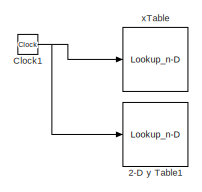
[diagram: root canvas - part 1/5, top center region]
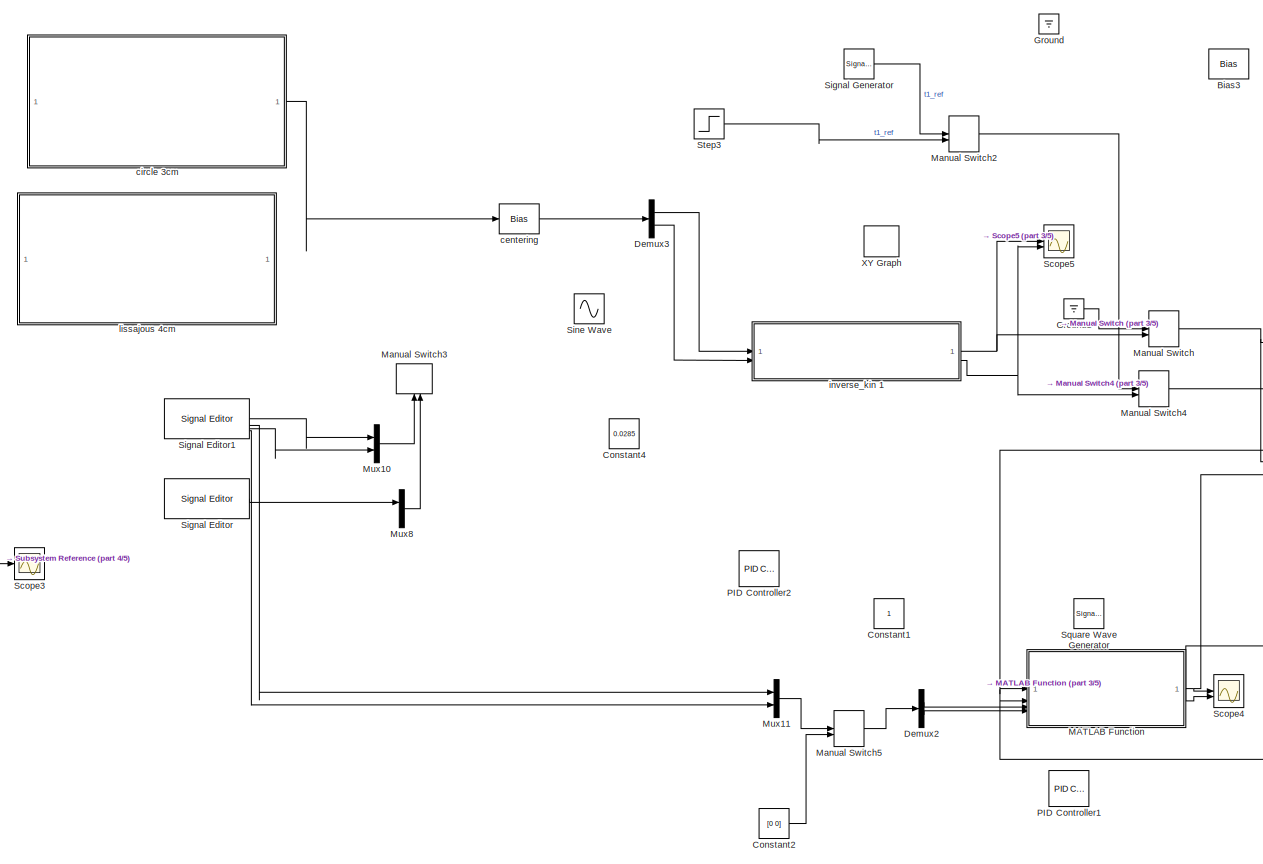
[diagram: root canvas - part 2/5, central region]
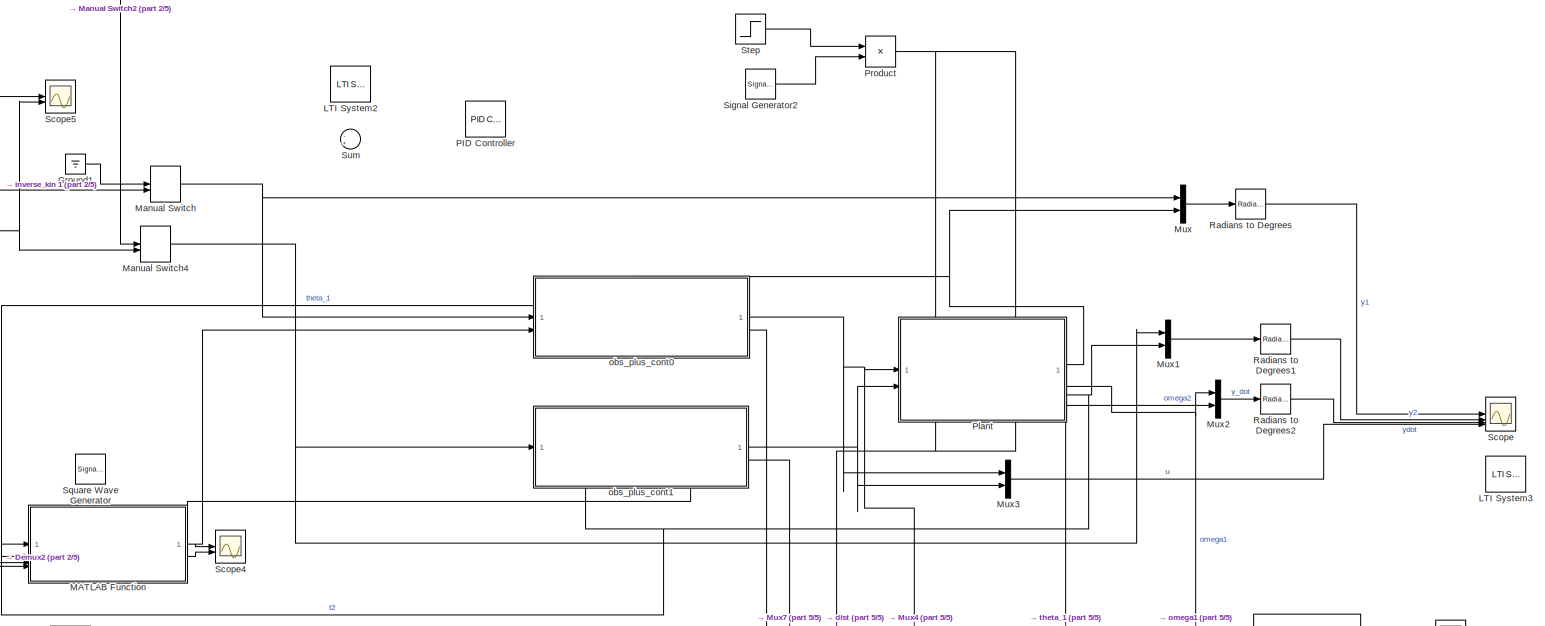
[diagram: root canvas - part 3/5, middle right region]
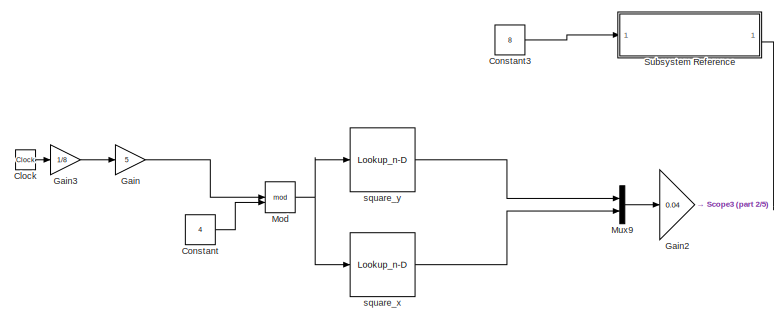
[diagram: root canvas - part 4/5, middle left region]
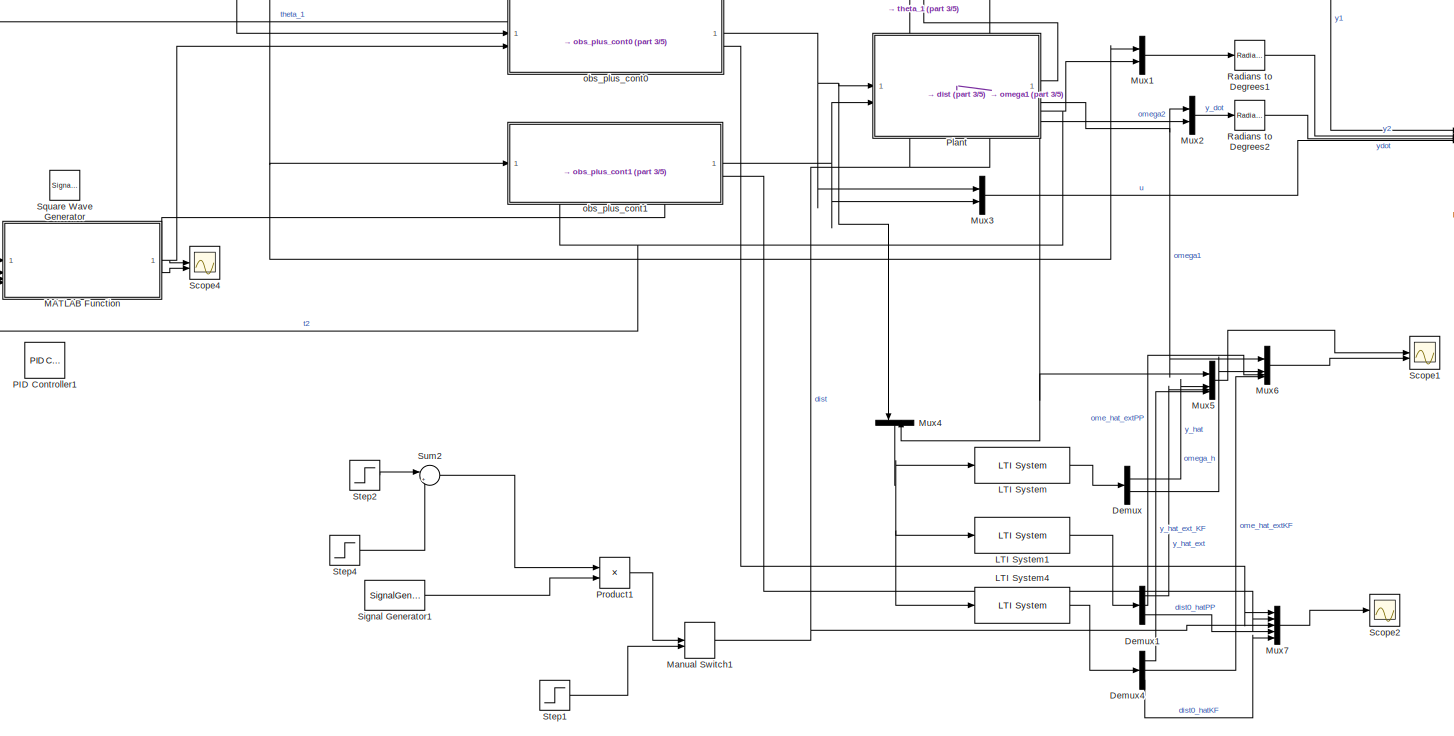
[diagram: root canvas - part 5/5, bottom right region]
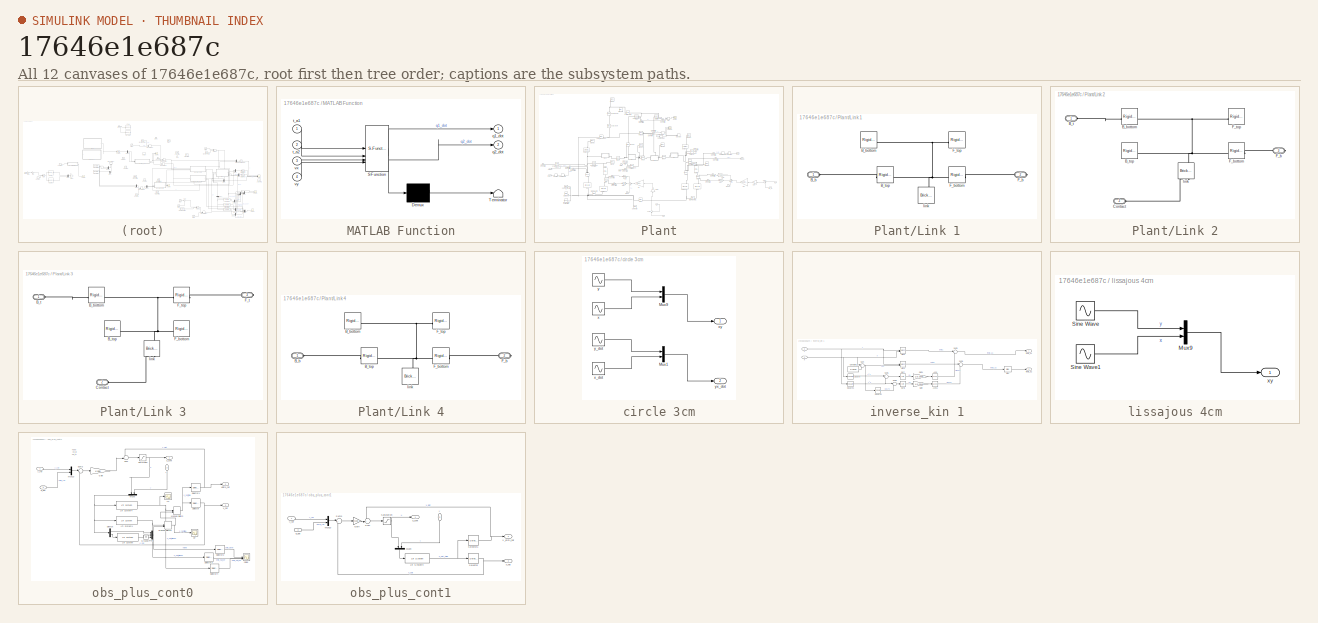
[diagram: thumbnail index - all 12 canvases of the model, root first then tree order]
MODEL slx_17646e1e687c
KIND model
CONFIG AbsTol = auto
CONFIG EnableMultiTasking = on
CONFIG FixedStep = auto
CONFIG MaxStep = auto
CONFIG MinStep = auto
CONFIG RelTol = 1e-3
CONFIG SampleTimeConstraint = Unconstrained
CONFIG SolverName = VariableStepAuto
CONFIG StartTime = 0.0
CONFIG StopTime = 10
BLOCK [Lookup_n-D] 2-D y Table1
  BreakpointsForDimension1 = 0:2:6
  BreakpointsForDimension2 = [1:3]
  Commented = on
  InputPortMap = u0
  InternalRulePriority = Speed
  NumberOfTableDimensions = 1
  RndMeth = Simplest
  Table = [0.127 0 -0.051 -0.051]
BLOCK [Bias] Bias3
  Bias = 0.127
  SaturateOnIntegerOverflow = off
BLOCK [Clock] Clock
BLOCK [Clock] Clock1
  Commented = on
BLOCK [Constant] Constant
  Value = 4
BLOCK [Constant] Constant1
BLOCK [Constant] Constant2
  Value = [0 0]
BLOCK [Constant] Constant3
  Value = 8
BLOCK [Constant] Constant4
  Value = 0.0285
BLOCK [Demux] Demux
  Outputs = 2
BLOCK [Demux] Demux1
  Outputs = 3
BLOCK [Demux] Demux2
  Outputs = 2
BLOCK [Demux] Demux3
  Outputs = 2
BLOCK [Demux] Demux4
  Outputs = 3
BLOCK [Gain] Gain
  Gain = 5
BLOCK [Gain] Gain2
  Gain = 0.04
BLOCK [Gain] Gain3
  Gain = 1/8
  NameLocation = left
BLOCK [Ground] Ground
BLOCK [Ground] Ground1
BLOCK [Reference] LTI System  REF=cstblocks/LTI System
  SourceBlock = cstblocks/LTI System
  SourceType = LTI Block
BLOCK [Reference] LTI System1  REF=cstblocks/LTI System
  SourceBlock = cstblocks/LTI System
  SourceType = LTI Block
BLOCK [Reference] LTI System2  REF=cstblocks/LTI System
  Commented = on
  SourceBlock = cstblocks/LTI System
  SourceType = LTI Block
BLOCK [Reference] LTI System3  REF=cstblocks/LTI System
  Commented = on
  SourceBlock = cstblocks/LTI System
  SourceType = LTI Block
BLOCK [Reference] LTI System4  REF=cstblocks/LTI System
  SourceBlock = cstblocks/LTI System
  SourceType = LTI Block
BLOCK [SubSystem] MATLAB Function
  ErrorFcn = Stateflow.Translate.translate
  PermitHierarchicalResolution = ExplicitOnly
  SFBlockType = MATLAB Function
  TreatAsAtomicUnit = on
BLOCK [Demux] MATLAB Function/ Demux 
  Outputs = 1
BLOCK [S-Function] MATLAB Function/ SFunction 
  EnableBusSupport = on
  FunctionName = sf_sfun
  PortCounts = [4 3]
  SFcnIsStateOwnerBlock = off
  SFunctionDeploymentMode = off
  Tag = Stateflow S-Function 2
BLOCK [Terminator] MATLAB Function/ Terminator 
BLOCK [Outport] MATLAB Function/q1_dot
BLOCK [Outport] MATLAB Function/q2_dot
  Port = 2
BLOCK [Inport] MATLAB Function/t_a1
BLOCK [Inport] MATLAB Function/t_a2
  Port = 2
BLOCK [Inport] MATLAB Function/vx
  Port = 3
BLOCK [Inport] MATLAB Function/vy
  Port = 4
BLOCK [ManualSwitch] Manual Switch
BLOCK [ManualSwitch] Manual Switch1
  CurrentSetting = 0
BLOCK [ManualSwitch] Manual Switch2
  CurrentSetting = 0
BLOCK [ManualSwitch] Manual Switch3
  Commented = on
  NameLocation = right
BLOCK [ManualSwitch] Manual Switch4
BLOCK [ManualSwitch] Manual Switch5
  CurrentSetting = 0
BLOCK [Math] Mod
  Operator = mod
BLOCK [Mux] Mux
  DisplayOption = bar
  Inputs = 2
BLOCK [Mux] Mux1
  DisplayOption = bar
  Inputs = 2
BLOCK [Mux] Mux10
  Commented = on
  DisplayOption = bar
  Inputs = 2
BLOCK [Mux] Mux11
  DisplayOption = bar
  Inputs = 2
BLOCK [Mux] Mux2
  DisplayOption = bar
  Inputs = 2
BLOCK [Mux] Mux3
  DisplayOption = bar
  Inputs = 2
BLOCK [Mux] Mux4
  DisplayOption = bar
  Inputs = 2
  NameLocation = left
BLOCK [Mux] Mux5
  DisplayOption = bar
BLOCK [Mux] Mux6
  DisplayOption = bar
BLOCK [Mux] Mux7
  DisplayOption = bar
  Inputs = 5
BLOCK [Mux] Mux8
  Commented = on
  DisplayOption = bar
  Inputs = 2
BLOCK [Mux] Mux9
  DisplayOption = bar
  Inputs = 2
BLOCK [Reference] PID Controller  REF=slpidlib/PID Controller
  LibrarySourceBlock = simulink/Continuous/PID Controller
  SourceBlock = slpidlib/PID Controller
  SourceType = PID 1dof
BLOCK [Reference] PID Controller1  REF=slpidlib/PID Controller
  LibrarySourceBlock = simulink/Continuous/PID Controller
  SourceBlock = slpidlib/PID Controller
  SourceType = PID 1dof
BLOCK [Reference] PID Controller2  REF=slpidlib/PID Controller
  LibrarySourceBlock = simulink/Continuous/PID Controller
  SourceBlock = slpidlib/PID Controller
  SourceType = PID 1dof
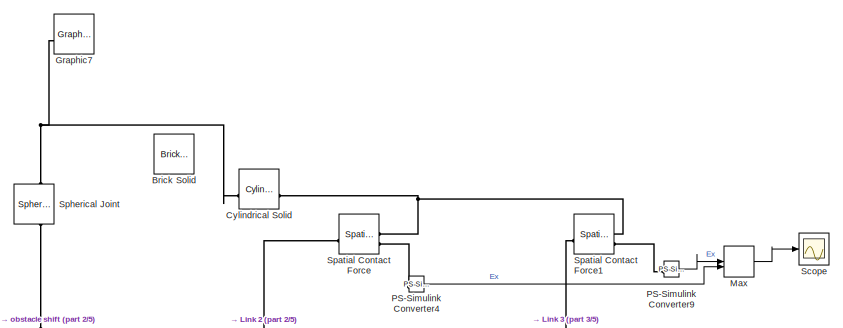
[diagram: Plant - part 1/5, top center region]
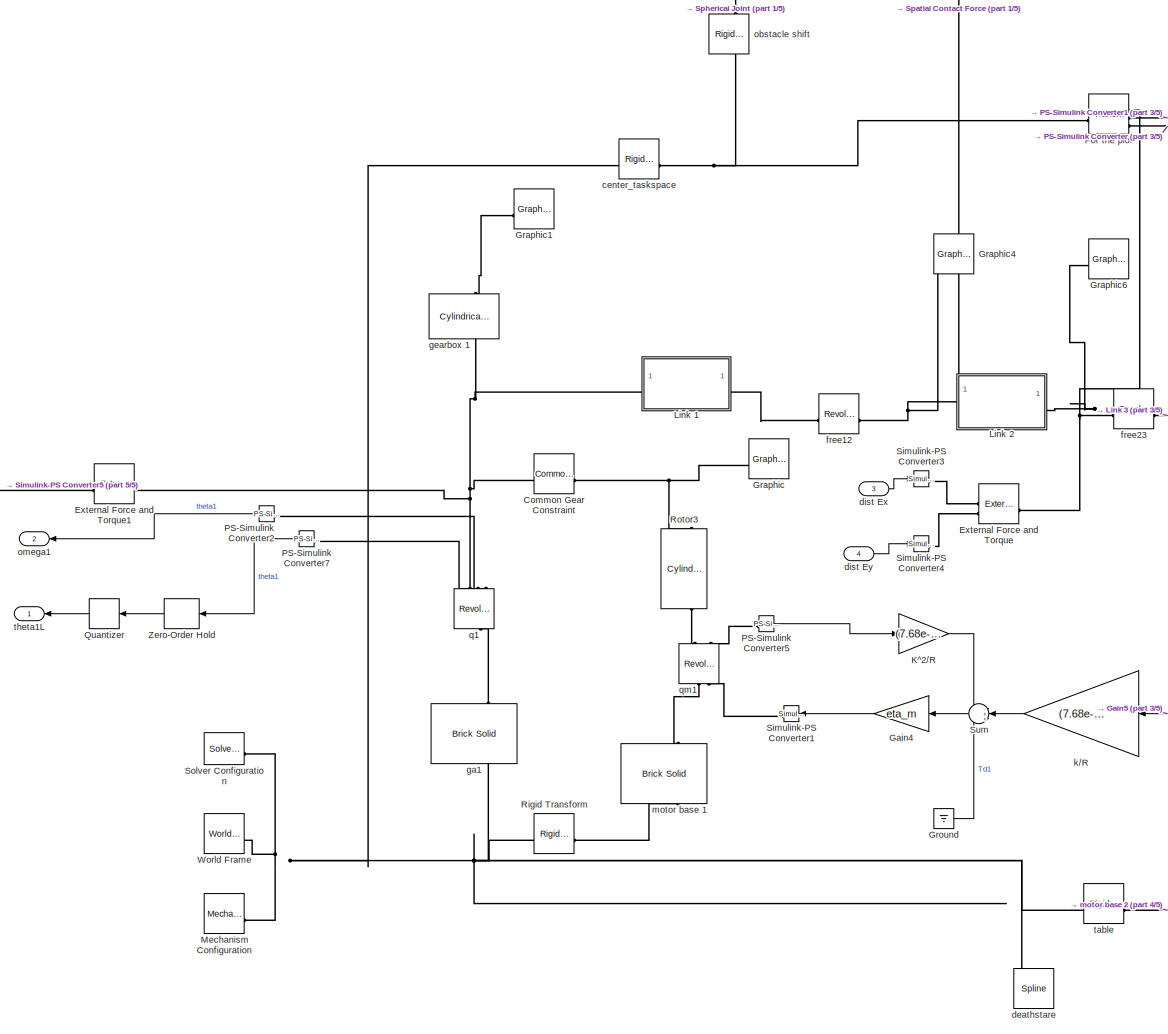
[diagram: Plant - part 2/5, middle left region]
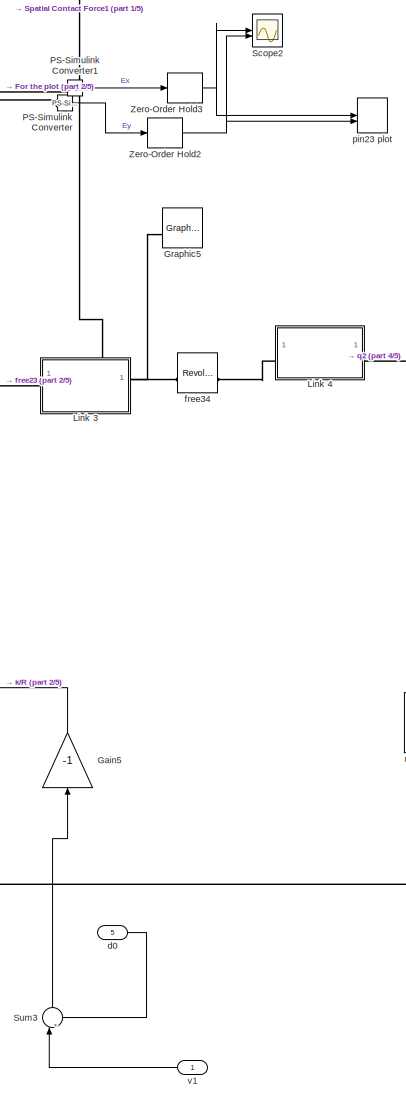
[diagram: Plant - part 3/5, center side, full height]
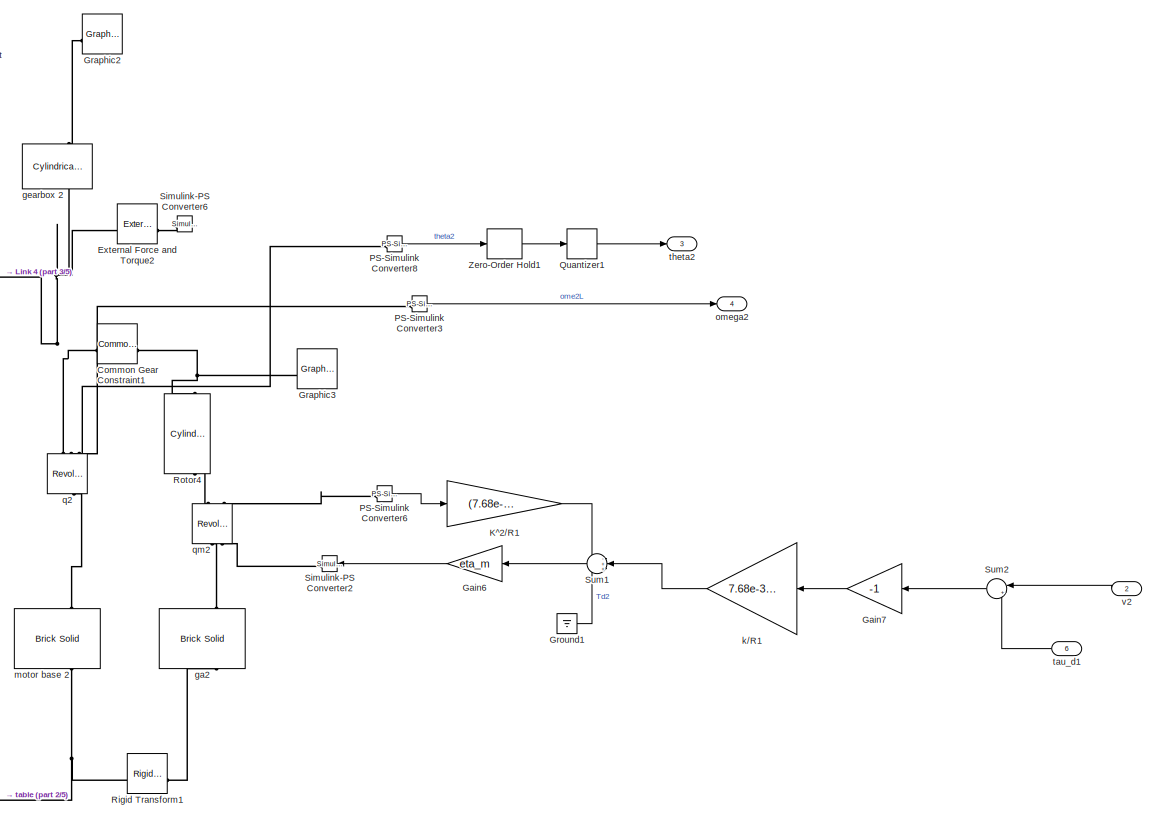
[diagram: Plant - part 4/5, middle right region]
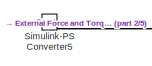
[diagram: Plant - part 5/5, middle left region]
BLOCK [SubSystem] Plant
  PortSchema = {"entries":[{"content":{"sides":[{"content":{"connectorIds":["In1","In2"]},"type":"ConnectorPlacement.EquallySpacedRectSide","uuid":"c17d0cb6-cba9-49ee-8cb4-85d71eb3b67e"},{"content":{"connectorIds":["Out1","Out2","Out3","Out4"],"side":"RIGHT"},"type":"ConnectorPlacement.EquallySpacedRectSide","uuid":"71120539-037f-400a-bd33-7feb054dfcef"},{"content":{"connectorIds":["In3","In4"],"side":"TOP"},"ty...<+433ch>
BLOCK [Reference] Plant/Brick Solid  REF=sm_lib/Body Elements/Brick Solid
  Commented = on
  NameLocation = top
  SourceBlock = sm_lib/Body Elements/Brick Solid
  SourceType = Brick Solid
BLOCK [Reference] Plant/Common Gear Constraint  REF=sm_lib/Gears and
Couplings/Gears/Common Gear
Constraint
  NameLocation = top
  SourceBlock = sm_lib/Gears and\nCouplings/Gears/Common Gear\nConstraint
  SourceType = Common Gear\nConstraint
BLOCK [Reference] Plant/Common Gear Constraint1  REF=sm_lib/Gears and
Couplings/Gears/Common Gear
Constraint
  NameLocation = top
  SourceBlock = sm_lib/Gears and\nCouplings/Gears/Common Gear\nConstraint
  SourceType = Common Gear\nConstraint
BLOCK [Reference] Plant/Cylindrical Solid  REF=sm_lib/Body Elements/Cylindrical Solid
  SourceBlock = sm_lib/Body Elements/Cylindrical Solid
  SourceType = Cylindrical Solid
BLOCK [Reference] Plant/External Force and Torque  REF=sm_lib/Forces and
Torques/External Force
and Torque
  SourceBlock = sm_lib/Forces and\nTorques/External Force\nand Torque
  SourceType = External Force\nand Torque
BLOCK [Reference] Plant/External Force and Torque1  REF=sm_lib/Forces and
Torques/External Force
and Torque
  SourceBlock = sm_lib/Forces and\nTorques/External Force\nand Torque
  SourceType = External Force\nand Torque
BLOCK [Reference] Plant/External Force and Torque2  REF=sm_lib/Forces and
Torques/External Force
and Torque
  NameLocation = top
  SourceBlock = sm_lib/Forces and\nTorques/External Force\nand Torque
  SourceType = External Force\nand Torque
BLOCK [Reference] Plant/For the plot  REF=sm_lib/Frames and
Transforms/Transform
Sensor
  SourceBlock = sm_lib/Frames and\nTransforms/Transform\nSensor
  SourceType = Transform\nSensor
BLOCK [Gain] Plant/Gain4
  Gain = eta_m
  NameLocation = top
BLOCK [Gain] Plant/Gain5
  Gain = -1
  NameLocation = right
BLOCK [Gain] Plant/Gain6
  Gain = eta_m
  NameLocation = top
BLOCK [Gain] Plant/Gain7
  Gain = -1
  NameLocation = top
BLOCK [Reference] Plant/Graphic  REF=sm_lib/Body Elements/Graphic
  NameLocation = top
  SourceBlock = sm_lib/Body Elements/Graphic
  SourceType = Graphic
BLOCK [Reference] Plant/Graphic1  REF=sm_lib/Body Elements/Graphic
  NameLocation = top
  SourceBlock = sm_lib/Body Elements/Graphic
  SourceType = Graphic
BLOCK [Reference] Plant/Graphic2  REF=sm_lib/Body Elements/Graphic
  NameLocation = top
  SourceBlock = sm_lib/Body Elements/Graphic
  SourceType = Graphic
BLOCK [Reference] Plant/Graphic3  REF=sm_lib/Body Elements/Graphic
  NameLocation = top
  SourceBlock = sm_lib/Body Elements/Graphic
  SourceType = Graphic
BLOCK [Reference] Plant/Graphic4  REF=sm_lib/Body Elements/Graphic
  NameLocation = top
  SourceBlock = sm_lib/Body Elements/Graphic
  SourceType = Graphic
BLOCK [Reference] Plant/Graphic5  REF=sm_lib/Body Elements/Graphic
  NameLocation = top
  SourceBlock = sm_lib/Body Elements/Graphic
  SourceType = Graphic
BLOCK [Reference] Plant/Graphic6  REF=sm_lib/Body Elements/Graphic
  NameLocation = top
  SourceBlock = sm_lib/Body Elements/Graphic
  SourceType = Graphic
BLOCK [Reference] Plant/Graphic7  REF=sm_lib/Body Elements/Graphic
  NameLocation = top
  SourceBlock = sm_lib/Body Elements/Graphic
  SourceType = Graphic
BLOCK [Ground] Plant/Ground
BLOCK [Ground] Plant/Ground1
BLOCK [Gain] Plant/K^2//R
  Gain = (7.68e-3)^2/2.6
BLOCK [Gain] Plant/K^2//R1
  Gain = (7.68e-3)^2/2.6
BLOCK [SubSystem] Plant/Link 1
BLOCK [PMIOPort] Plant/Link 1/B_b
  Side = Left
BLOCK [Reference] Plant/Link 1/B_bottom  REF=sm_lib/Frames and
Transforms/Rigid
Transform
  Commented = on
  SourceBlock = sm_lib/Frames and\nTransforms/Rigid\nTransform
  SourceType = Rigid\nTransform
BLOCK [Reference] Plant/Link 1/B_top  REF=sm_lib/Frames and
Transforms/Rigid
Transform
  SourceBlock = sm_lib/Frames and\nTransforms/Rigid\nTransform
  SourceType = Rigid\nTransform
BLOCK [PMIOPort] Plant/Link 1/F_b
  Port = 2
  Side = Right
BLOCK [Reference] Plant/Link 1/F_bottom   REF=sm_lib/Frames and
Transforms/Rigid
Transform
  SourceBlock = sm_lib/Frames and\nTransforms/Rigid\nTransform
  SourceType = Rigid\nTransform
BLOCK [Reference] Plant/Link 1/F_top  REF=sm_lib/Frames and
Transforms/Rigid
Transform
  Commented = on
  SourceBlock = sm_lib/Frames and\nTransforms/Rigid\nTransform
  SourceType = Rigid\nTransform
BLOCK [Reference] Plant/Link 1/link   REF=sm_lib/Body Elements/Brick Solid
  NameLocation = right
  SourceBlock = sm_lib/Body Elements/Brick Solid
  SourceType = Brick Solid
BLOCK [SubSystem] Plant/Link 2
  PortSchema = {"entries":[{"content":{"sides":[{"content":{"connectorIds":["LConn1"]},"type":"ConnectorPlacement.EquallySpacedRectSide","uuid":"05fafed0-935c-4e4b-b3f8-9bb56782fa2d"},{"content":{"connectorIds":["RConn1"],"side":"RIGHT"},"type":"ConnectorPlacement.EquallySpacedRectSide","uuid":"a47f4642-46d0-4fee-b820-c3c46316fd4c"},{"content":{"connectorIds":["LConn2"],"side":"TOP"},"type":"ConnectorPlacement.E...<+253ch>
BLOCK [Reference] Plant/Link 2/B_bottom  REF=sm_lib/Frames and
Transforms/Rigid
Transform
  SourceBlock = sm_lib/Frames and\nTransforms/Rigid\nTransform
  SourceType = Rigid\nTransform
BLOCK [PMIOPort] Plant/Link 2/B_t
  Side = Left
BLOCK [Reference] Plant/Link 2/B_top  REF=sm_lib/Frames and
Transforms/Rigid
Transform
  Commented = on
  SourceBlock = sm_lib/Frames and\nTransforms/Rigid\nTransform
  SourceType = Rigid\nTransform
BLOCK [PMIOPort] Plant/Link 2/Contact
  Port = 2
  Side = Left
BLOCK [PMIOPort] Plant/Link 2/F_b
  Port = 3
  Side = Right
BLOCK [Reference] Plant/Link 2/F_bottom   REF=sm_lib/Frames and
Transforms/Rigid
Transform
  SourceBlock = sm_lib/Frames and\nTransforms/Rigid\nTransform
  SourceType = Rigid\nTransform
BLOCK [Reference] Plant/Link 2/F_top  REF=sm_lib/Frames and
Transforms/Rigid
Transform
  Commented = on
  SourceBlock = sm_lib/Frames and\nTransforms/Rigid\nTransform
  SourceType = Rigid\nTransform
BLOCK [Reference] Plant/Link 2/link   REF=sm_lib/Body Elements/Brick Solid
  NameLocation = right
  SourceBlock = sm_lib/Body Elements/Brick Solid
  SourceType = Brick Solid
BLOCK [SubSystem] Plant/Link 3
  PortSchema = {"entries":[{"content":{"sides":[{"content":{"connectorIds":["LConn1"]},"type":"ConnectorPlacement.EquallySpacedRectSide","uuid":"05fafed0-935c-4e4b-b3f8-9bb56782fa2d"},{"content":{"connectorIds":["RConn1"],"side":"RIGHT"},"type":"ConnectorPlacement.EquallySpacedRectSide","uuid":"a47f4642-46d0-4fee-b820-c3c46316fd4c"},{"content":{"connectorIds":["LConn2"],"side":"TOP"},"type":"ConnectorPlacement.E...<+253ch>
BLOCK [Reference] Plant/Link 3/B_bottom  REF=sm_lib/Frames and
Transforms/Rigid
Transform
  SourceBlock = sm_lib/Frames and\nTransforms/Rigid\nTransform
  SourceType = Rigid\nTransform
BLOCK [PMIOPort] Plant/Link 3/B_t
  Side = Left
BLOCK [Reference] Plant/Link 3/B_top  REF=sm_lib/Frames and
Transforms/Rigid
Transform
  Commented = on
  SourceBlock = sm_lib/Frames and\nTransforms/Rigid\nTransform
  SourceType = Rigid\nTransform
BLOCK [PMIOPort] Plant/Link 3/Contact
  Port = 2
  Side = Left
BLOCK [Reference] Plant/Link 3/F_bottom   REF=sm_lib/Frames and
Transforms/Rigid
Transform
  Commented = on
  SourceBlock = sm_lib/Frames and\nTransforms/Rigid\nTransform
  SourceType = Rigid\nTransform
BLOCK [PMIOPort] Plant/Link 3/F_t
  Port = 3
  Side = Right
BLOCK [Reference] Plant/Link 3/F_top  REF=sm_lib/Frames and
Transforms/Rigid
Transform
  SourceBlock = sm_lib/Frames and\nTransforms/Rigid\nTransform
  SourceType = Rigid\nTransform
BLOCK [Reference] Plant/Link 3/link   REF=sm_lib/Body Elements/Brick Solid
  NameLocation = right
  SourceBlock = sm_lib/Body Elements/Brick Solid
  SourceType = Brick Solid
BLOCK [SubSystem] Plant/Link 4
BLOCK [PMIOPort] Plant/Link 4/B_b
  Side = Left
BLOCK [Reference] Plant/Link 4/B_bottom  REF=sm_lib/Frames and
Transforms/Rigid
Transform
  Commented = on
  SourceBlock = sm_lib/Frames and\nTransforms/Rigid\nTransform
  SourceType = Rigid\nTransform
BLOCK [Reference] Plant/Link 4/B_top  REF=sm_lib/Frames and
Transforms/Rigid
Transform
  SourceBlock = sm_lib/Frames and\nTransforms/Rigid\nTransform
  SourceType = Rigid\nTransform
BLOCK [PMIOPort] Plant/Link 4/F_b
  Port = 2
  Side = Right
BLOCK [Reference] Plant/Link 4/F_bottom   REF=sm_lib/Frames and
Transforms/Rigid
Transform
  SourceBlock = sm_lib/Frames and\nTransforms/Rigid\nTransform
  SourceType = Rigid\nTransform
BLOCK [Reference] Plant/Link 4/F_top  REF=sm_lib/Frames and
Transforms/Rigid
Transform
  Commented = on
  SourceBlock = sm_lib/Frames and\nTransforms/Rigid\nTransform
  SourceType = Rigid\nTransform
BLOCK [Reference] Plant/Link 4/link   REF=sm_lib/Body Elements/Brick Solid
  NameLocation = right
  SourceBlock = sm_lib/Body Elements/Brick Solid
  SourceType = Brick Solid
BLOCK [MinMax] Plant/Max
  Function = max
  Inputs = 2
BLOCK [Reference] Plant/Mechanism Configuration  REF=sm_lib/Utilities/Mechanism
Configuration
  SourceBlock = sm_lib/Utilities/Mechanism\nConfiguration
  SourceType = Mechanism\nConfiguration
BLOCK [Reference] Plant/PS-Simulink Converter  REF=nesl_utility/PS-Simulink
Converter
  SourceBlock = nesl_utility/PS-Simulink\nConverter
  SourceType = PS-Simulink\nConverter
BLOCK [Reference] Plant/PS-Simulink Converter1  REF=nesl_utility/PS-Simulink
Converter
  SourceBlock = nesl_utility/PS-Simulink\nConverter
  SourceType = PS-Simulink\nConverter
BLOCK [Reference] Plant/PS-Simulink Converter2  REF=nesl_utility/PS-Simulink
Converter
  NameLocation = top
  SourceBlock = nesl_utility/PS-Simulink\nConverter
  SourceType = PS-Simulink\nConverter
BLOCK [Reference] Plant/PS-Simulink Converter3  REF=nesl_utility/PS-Simulink
Converter
  SourceBlock = nesl_utility/PS-Simulink\nConverter
  SourceType = PS-Simulink\nConverter
BLOCK [Reference] Plant/PS-Simulink Converter4  REF=nesl_utility/PS-Simulink
Converter
  SourceBlock = nesl_utility/PS-Simulink\nConverter
  SourceType = PS-Simulink\nConverter
BLOCK [Reference] Plant/PS-Simulink Converter5  REF=nesl_utility/PS-Simulink
Converter
  SourceBlock = nesl_utility/PS-Simulink\nConverter
  SourceType = PS-Simulink\nConverter
BLOCK [Reference] Plant/PS-Simulink Converter6  REF=nesl_utility/PS-Simulink
Converter
  SourceBlock = nesl_utility/PS-Simulink\nConverter
  SourceType = PS-Simulink\nConverter
BLOCK [Reference] Plant/PS-Simulink Converter7  REF=nesl_utility/PS-Simulink
Converter
  NameLocation = top
  SourceBlock = nesl_utility/PS-Simulink\nConverter
  SourceType = PS-Simulink\nConverter
BLOCK [Reference] Plant/PS-Simulink Converter8  REF=nesl_utility/PS-Simulink
Converter
  SourceBlock = nesl_utility/PS-Simulink\nConverter
  SourceType = PS-Simulink\nConverter
BLOCK [Reference] Plant/PS-Simulink Converter9  REF=nesl_utility/PS-Simulink
Converter
  SourceBlock = nesl_utility/PS-Simulink\nConverter
  SourceType = PS-Simulink\nConverter
BLOCK [Quantizer] Plant/Quantizer
  NameLocation = top
  QuantizationInterval = pi/2048
BLOCK [Quantizer] Plant/Quantizer1
  QuantizationInterval = pi/2048
BLOCK [Reference] Plant/Rigid Transform  REF=sm_lib/Frames and
Transforms/Rigid
Transform
  SourceBlock = sm_lib/Frames and\nTransforms/Rigid\nTransform
  SourceType = Rigid\nTransform
BLOCK [Reference] Plant/Rigid Transform1  REF=sm_lib/Frames and
Transforms/Rigid
Transform
  SourceBlock = sm_lib/Frames and\nTransforms/Rigid\nTransform
  SourceType = Rigid\nTransform
BLOCK [Reference] Plant/Rotor3  REF=sm_lib/Body Elements/Cylindrical Solid
  NameLocation = left
  SourceBlock = sm_lib/Body Elements/Cylindrical Solid
  SourceType = Cylindrical Solid
BLOCK [Reference] Plant/Rotor4  REF=sm_lib/Body Elements/Cylindrical Solid
  NameLocation = left
  SourceBlock = sm_lib/Body Elements/Cylindrical Solid
  SourceType = Cylindrical Solid
BLOCK [Scope] Plant/Scope
  Floating = off
  NumInputPorts = 1
  ScopeSpecificationString = Simulink.scopes.TimeScopeBlockCfg('CurrentConfiguration', extmgr.ConfigurationSet(extmgr.Configuration('Core','General UI',true),extmgr.Configuration('Core','Source UI',true),extmgr.Configuration('Sources','WiredSimulink',true,'DataLoggingVariableName','ScopeData1'),extmgr.Configuration('Visuals','Time Domain',true,'SerializedDisplays',{struct('MinYLimReal','-49.23411','MaxYLimReal','443.10698','Y...<+1509ch>
BLOCK [Scope] Plant/Scope2
  Floating = off
  NumInputPorts = 2
  ScopeSpecificationString = Simulink.scopes.TimeScopeBlockCfg('CurrentConfiguration', extmgr.ConfigurationSet(extmgr.Configuration('Core','General UI',true),extmgr.Configuration('Core','Source UI',true),extmgr.Configuration('Sources','WiredSimulink',true,'DataLoggingVariableName','ScopeData2'),extmgr.Configuration('Visuals','Time Domain',true,'SerializedDisplays',{struct('MinYLimReal','-0.00904','MaxYLimReal','-0.00196','YLa...<+1457ch>
BLOCK [Reference] Plant/Simulink-PS Converter1  REF=nesl_utility/Simulink-PS
Converter
  NameLocation = top
  SourceBlock = nesl_utility/Simulink-PS\nConverter
  SourceType = Simulink-PS\nConverter
BLOCK [Reference] Plant/Simulink-PS Converter2  REF=nesl_utility/Simulink-PS
Converter
  NameLocation = top
  SourceBlock = nesl_utility/Simulink-PS\nConverter
  SourceType = Simulink-PS\nConverter
BLOCK [Reference] Plant/Simulink-PS Converter3  REF=nesl_utility/Simulink-PS
Converter
  SourceBlock = nesl_utility/Simulink-PS\nConverter
  SourceType = Simulink-PS\nConverter
BLOCK [Reference] Plant/Simulink-PS Converter4  REF=nesl_utility/Simulink-PS
Converter
  SourceBlock = nesl_utility/Simulink-PS\nConverter
  SourceType = Simulink-PS\nConverter
BLOCK [Reference] Plant/Simulink-PS Converter5  REF=nesl_utility/Simulink-PS
Converter
  SourceBlock = nesl_utility/Simulink-PS\nConverter
  SourceType = Simulink-PS\nConverter
BLOCK [Reference] Plant/Simulink-PS Converter6  REF=nesl_utility/Simulink-PS
Converter
  NameLocation = top
  SourceBlock = nesl_utility/Simulink-PS\nConverter
  SourceType = Simulink-PS\nConverter
BLOCK [Reference] Plant/Solver Configuration  REF=nesl_utility/Solver
Configuration
  SourceBlock = nesl_utility/Solver\nConfiguration
  SourceType = Solver\nConfiguration
BLOCK [Reference] Plant/Spatial Contact Force  REF=sm_lib/Forces and
Torques/Spatial
Contact Force
  SourceBlock = sm_lib/Forces and\nTorques/Spatial\nContact Force
  SourceType = Spatial\nContact Force
BLOCK [Reference] Plant/Spatial Contact Force1  REF=sm_lib/Forces and
Torques/Spatial
Contact Force
  SourceBlock = sm_lib/Forces and\nTorques/Spatial\nContact Force
  SourceType = Spatial\nContact Force
BLOCK [Reference] Plant/Spherical Joint  REF=sm_lib/Joints/Spherical
Joint
  NameLocation = left
  SourceBlock = sm_lib/Joints/Spherical\nJoint
  SourceType = Spherical\nJoint
BLOCK [Sum] Plant/Sum
  Inputs = -++
  NameLocation = top
BLOCK [Sum] Plant/Sum1
  Inputs = -++
  NameLocation = top
BLOCK [Sum] Plant/Sum2
  Inputs = |++
  NameLocation = top
BLOCK [Sum] Plant/Sum3
  Inputs = |++
  NameLocation = right
BLOCK [Reference] Plant/World Frame  REF=sm_lib/Frames and
Transforms/World Frame
  SourceBlock = sm_lib/Frames and\nTransforms/World Frame
  SourceType = World Frame
BLOCK [ZeroOrderHold] Plant/Zero-Order Hold
  NameLocation = top
  SampleTime = 1/500
BLOCK [ZeroOrderHold] Plant/Zero-Order Hold1
  SampleTime = 1/500
BLOCK [ZeroOrderHold] Plant/Zero-Order Hold2
  SampleTime = 1/500
BLOCK [ZeroOrderHold] Plant/Zero-Order Hold3
  SampleTime = 1/500
BLOCK [Reference] Plant/center_taskspace  REF=sm_lib/Frames and
Transforms/Rigid
Transform
  SourceBlock = sm_lib/Frames and\nTransforms/Rigid\nTransform
  SourceType = Rigid\nTransform
BLOCK [Inport] Plant/d0
  Port = 5
BLOCK [Reference] Plant/deathstare  REF=sm_lib/Curves and Surfaces/Spline
  Commented = on
  SourceBlock = sm_lib/Curves and Surfaces/Spline
  SourceType = Spline
BLOCK [Inport] Plant/dist Ex
  Port = 3
BLOCK [Inport] Plant/dist Ey
  Port = 4
BLOCK [Reference] Plant/free12  REF=sm_lib/Joints/Revolute Joint
  SourceBlock = sm_lib/Joints/Revolute Joint
  SourceType = Revolute Joint
BLOCK [Reference] Plant/free23  REF=sm_lib/Joints/Revolute Joint
  SourceBlock = sm_lib/Joints/Revolute Joint
  SourceType = Revolute Joint
BLOCK [Reference] Plant/free34  REF=sm_lib/Joints/Revolute Joint
  SourceBlock = sm_lib/Joints/Revolute Joint
  SourceType = Revolute Joint
BLOCK [Reference] Plant/ga1  REF=sm_lib/Body Elements/Brick Solid
  NameLocation = left
  SourceBlock = sm_lib/Body Elements/Brick Solid
  SourceType = Brick Solid
BLOCK [Reference] Plant/ga2  REF=sm_lib/Body Elements/Brick Solid
  NameLocation = left
  SourceBlock = sm_lib/Body Elements/Brick Solid
  SourceType = Brick Solid
BLOCK [Reference] Plant/gearbox 1  REF=sm_lib/Body Elements/Cylindrical Solid
  NameLocation = right
  SourceBlock = sm_lib/Body Elements/Cylindrical Solid
  SourceType = Cylindrical Solid
BLOCK [Reference] Plant/gearbox 2  REF=sm_lib/Body Elements/Cylindrical Solid
  NameLocation = right
  SourceBlock = sm_lib/Body Elements/Cylindrical Solid
  SourceType = Cylindrical Solid
BLOCK [Gain] Plant/k//R
  Gain = (7.68e-3)/2.6
  NameLocation = top
BLOCK [Gain] Plant/k//R1
  Gain = 7.68e-3/2.6
  NameLocation = top
BLOCK [Reference] Plant/motor base 1  REF=sm_lib/Body Elements/Brick Solid
  NameLocation = left
  SourceBlock = sm_lib/Body Elements/Brick Solid
  SourceType = Brick Solid
BLOCK [Reference] Plant/motor base 2  REF=sm_lib/Body Elements/Brick Solid
  NameLocation = left
  SourceBlock = sm_lib/Body Elements/Brick Solid
  SourceType = Brick Solid
BLOCK [Reference] Plant/obstacle shift  REF=sm_lib/Frames and
Transforms/Rigid
Transform
  NameLocation = right
  SourceBlock = sm_lib/Frames and\nTransforms/Rigid\nTransform
  SourceType = Rigid\nTransform
BLOCK [Outport] Plant/omega1
  NameLocation = top
  Port = 2
BLOCK [Outport] Plant/omega2
  Port = 4
BLOCK [Record] Plant/pin23 plot
  CompatibilityTag = XY
  FileSettingsInternal = {"entries":[{"content":{"excelSettings":{"content":{},"type":"Streamout.ExcelSettings"}},"type":"Streamout.FileSettingStorage","uuid":""}],"packageUris":["http:\/\/schema.mathworks.com\/mf0\/streamout_blocks\/R2020a"],"version":"1.0"}
  Layout = [1 1]
  SignalsInternal = {"entries":[{"content":{"signals":[{"content":{"blockPath":[],"dimensions":[1],"domain":"","lineColor":"#64d413","lineWidth":2,"plots":[ 1 ],"port":1,"sid":[""],"signalID":1,"signalName":"Zero-Order\nHold3"},"type":"RecordBlkView.Signal","uuid":""},{"content":{"blockPath":[],"dimensions":[1],"domain":"","lineColor":"#ff13a6","lineWidth":2,"plots":[ 1 ],"port":2,"sid":[""],"signalID":2,"signalName"...<+208ch>
  VisualizationBindings = {"xyplotplugin":{"info":[{"series":[{"bindingParametersList":[{"parameter":"X-Axis","signalID":1,"signalName":"Zero-Order\nHold3"},{"parameter":"Y-Axis","signalID":2,"signalName":"Zero-Order\nHold2"}],"seriesID":0}],"subplotID":1}]}}
  st = -1
BLOCK [Reference] Plant/q1  REF=sm_lib/Joints/Revolute Joint
  NameLocation = right
  SourceBlock = sm_lib/Joints/Revolute Joint
  SourceType = Revolute Joint
BLOCK [Reference] Plant/q2  REF=sm_lib/Joints/Revolute Joint
  NameLocation = right
  SourceBlock = sm_lib/Joints/Revolute Joint
  SourceType = Revolute Joint
BLOCK [Reference] Plant/qm1  REF=sm_lib/Joints/Revolute Joint
  NameLocation = right
  SourceBlock = sm_lib/Joints/Revolute Joint
  SourceType = Revolute Joint
BLOCK [Reference] Plant/qm2  REF=sm_lib/Joints/Revolute Joint
  NameLocation = right
  SourceBlock = sm_lib/Joints/Revolute Joint
  SourceType = Revolute Joint
BLOCK [Reference] Plant/table  REF=sm_lib/Frames and
Transforms/Rigid
Transform
  SourceBlock = sm_lib/Frames and\nTransforms/Rigid\nTransform
  SourceType = Rigid\nTransform
BLOCK [Inport] Plant/tau_d1
  NameLocation = top
  Port = 6
BLOCK [Outport] Plant/theta1L
  NameLocation = top
BLOCK [Outport] Plant/theta2
  Port = 3
BLOCK [Inport] Plant/v1
  NameLocation = top
BLOCK [Inport] Plant/v2
  NameLocation = top
  Port = 2
BLOCK [Product] Product
BLOCK [Product] Product1
BLOCK [Reference] Radians to Degrees  REF=simulink_extras/Transformations/Radians
to Degrees
  SourceBlock = simulink_extras/Transformations/Radians\nto Degrees
  SourceType = RadiansToDegrees
BLOCK [Reference] Radians to Degrees1  REF=simulink_extras/Transformations/Radians
to Degrees
  SourceBlock = simulink_extras/Transformations/Radians\nto Degrees
  SourceType = RadiansToDegrees
BLOCK [Reference] Radians to Degrees2  REF=simulink_extras/Transformations/Radians
to Degrees
  SourceBlock = simulink_extras/Transformations/Radians\nto Degrees
  SourceType = RadiansToDegrees
BLOCK [Scope] Scope
  Floating = off
  NumInputPorts = 4
  ScopeSpecificationString = Simulink.scopes.TimeScopeBlockCfg('CurrentConfiguration', extmgr.ConfigurationSet(extmgr.Configuration('Core','General UI',true),extmgr.Configuration('Core','Source UI',true),extmgr.Configuration('Sources','WiredSimulink',true,'DataLoggingVariableName','ScopeData1'),extmgr.Configuration('Visuals','Time Domain',true,'SerializedDisplays',{struct('MinYLimReal','-133.31647','MaxYLimReal','14.81294','Y...<+4082ch>
BLOCK [Scope] Scope1
  Floating = off
  NumInputPorts = 2
  ScopeSpecificationString = Simulink.scopes.TimeScopeBlockCfg('CurrentConfiguration', extmgr.ConfigurationSet(extmgr.Configuration('Core','General UI',true),extmgr.Configuration('Core','Source UI',true),extmgr.Configuration('Sources','WiredSimulink',true,'DataLoggingVariableName','ScopeData1'),extmgr.Configuration('Visuals','Time Domain',true,'SerializedDisplays',{struct('MinYLimReal','-0.19573','MaxYLimReal','0.52506','YLab...<+2494ch>
BLOCK [Scope] Scope2
  Floating = off
  NumInputPorts = 1
  ScopeSpecificationString = Simulink.scopes.TimeScopeBlockCfg('CurrentConfiguration', extmgr.ConfigurationSet(extmgr.Configuration('Core','General UI',true),extmgr.Configuration('Core','Source UI',true),extmgr.Configuration('Sources','WiredSimulink',true,'DataLoggingVariableName','ScopeData2'),extmgr.Configuration('Visuals','Time Domain',true,'SerializedDisplays',{struct('MinYLimReal','-0.69992','MaxYLimReal','0.51086','YLab...<+1723ch>
BLOCK [Scope] Scope3
  Commented = on
  Floating = off
  NumInputPorts = 1
  ScopeSpecificationString = Simulink.scopes.TimeScopeBlockCfg('CurrentConfiguration', extmgr.ConfigurationSet(extmgr.Configuration('Core','General UI',true),extmgr.Configuration('Core','Source UI',true),extmgr.Configuration('Sources','WiredSimulink',true,'DataLoggingVariableName','ScopeData1'),extmgr.Configuration('Visuals','Time Domain',true,'SerializedDisplays',{struct('MinYLimReal','-0.1001','MaxYLimReal','0.1001','YLabel...<+1489ch>
BLOCK [Scope] Scope4
  Floating = off
  NumInputPorts = 2
  ScopeSpecificationString = Simulink.scopes.TimeScopeBlockCfg('CurrentConfiguration', extmgr.ConfigurationSet(extmgr.Configuration('Core','General UI',true),extmgr.Configuration('Core','Source UI',true),extmgr.Configuration('Sources','WiredSimulink',true,'DataLoggingVariableName','ScopeData1'),extmgr.Configuration('Visuals','Time Domain',true,'SerializedDisplays',{struct('MinYLimReal','-0.27083','MaxYLimReal','0.3011','YLabe...<+1520ch>
BLOCK [Scope] Scope5
  Floating = off
  NumInputPorts = 2
  ScopeSpecificationString = Simulink.scopes.TimeScopeBlockCfg('CurrentConfiguration', extmgr.ConfigurationSet(extmgr.Configuration('Core','General UI',true),extmgr.Configuration('Core','Source UI',true),extmgr.Configuration('Sources','WiredSimulink',true,'DataLoggingVariableName','ScopeData1'),extmgr.Configuration('Visuals','Time Domain',true,'SerializedDisplays',{struct('MinYLimReal','-1.14127','MaxYLimReal','1.44025','YLab...<+1517ch>
BLOCK [Reference] Signal Editor  REF=SignalEditorBlockLib/Signal Editor
  Commented = on
  LibrarySourceBlock = simulink/Sources/Signal Editor
  SourceBlock = SignalEditorBlockLib/Signal Editor
  SourceType = SignalEditor
  UserDataPersistent = on
BLOCK [Reference] Signal Editor1  REF=SignalEditorBlockLib/Signal Editor
  Commented = on
  LibrarySourceBlock = simulink/Sources/Signal Editor
  SourceBlock = SignalEditorBlockLib/Signal Editor
  SourceType = SignalEditor
  UserDataPersistent = on
BLOCK [SignalGenerator] Signal Generator
  Amplitude = deg2rad(30)
  Frequency = 23
  Units = rad/sec
BLOCK [SignalGenerator] Signal Generator1
  Amplitude = 0.5
  Units = rad/sec
  WaveForm = sawtooth
BLOCK [SignalGenerator] Signal Generator2
  Amplitude = 0
  Units = rad/sec
BLOCK [Sin] Sine Wave
  Amplitude = 0.03
  Bias = 0.041
  SampleTime = 0
BLOCK [SignalGenerator] Square Wave Generator
  Amplitude = deg2rad(5)
  Frequency = 5
  Units = rad/sec
  WaveForm = square
BLOCK [Step] Step
  SampleTime = 0
BLOCK [Step] Step1
  After = 0
  SampleTime = 0
BLOCK [Step] Step2
  SampleTime = 0
  Time = 3.14
BLOCK [Step] Step3
  After = deg2rad(25)
  SampleTime = 0
BLOCK [Step] Step4
  After = -1
  SampleTime = 0
  Time = 2*3.14
BLOCK [SubSystem] Subsystem Reference
  Commented = on
  ReferencedSubsystem = square_generator
BLOCK [Sum] Sum
  Inputs = -+|
BLOCK [Sum] Sum2
  Inputs = |++
BLOCK [Record] XY Graph
  CompatibilityTag = XY
  FileSettingsInternal = {"entries":[{"content":{"excelSettings":{"content":{},"type":"Streamout.ExcelSettings"}},"type":"Streamout.FileSettingStorage","uuid":""}],"packageUris":["http:\/\/schema.mathworks.com\/mf0\/streamout_blocks\/R2020a"],"version":"1.0"}
  Layout = [1 1]
  SignalsInternal = {"entries":[{"content":{"signals":[{"content":{"blockPath":[],"dimensions":[1],"domain":"","lineColor":"#a2142f","plots":[ 1 ],"port":1,"sid":[""],"signalID":1},"type":"RecordBlkView.Signal","uuid":""},{"content":{"blockPath":[],"dimensions":[1],"domain":"","lineColor":"#139fff","plots":[ 1 ],"port":2,"sid":[""],"signalID":2},"type":"RecordBlkView.Signal","uuid":""}]},"type":"RecordBlkView.InputSi...<+114ch>
  VisualizationBindings = {"xyplotplugin":{"info":[{"series":[{"bindingParametersList":[{"parameter":"X-Axis","signalID":1,"signalName":"XY Graph:1"},{"parameter":"Y-Axis","signalID":2,"signalName":"XY Graph:2"}],"seriesID":0}],"subplotID":1}]}}
BLOCK [Bias] centering
  Bias = [0.13 ; 0.135]
  SaturateOnIntegerOverflow = off
BLOCK [SubSystem] circle 3cm
BLOCK [Mux] circle 3cm/Mux1
  DisplayOption = bar
  Inputs = 2
BLOCK [Mux] circle 3cm/Mux9
  DisplayOption = bar
  Inputs = 2
BLOCK [Sin] circle 3cm/x
  Amplitude = 0.04
  Frequency = 12
  SampleTime = 0
BLOCK [Sin] circle 3cm/x_dot
  Amplitude = 0.04*12
  Frequency = 12
  Phase = pi/2
  SampleTime = 0
BLOCK [Outport] circle 3cm/xy
BLOCK [Sin] circle 3cm/y
  Amplitude = 0.04
  Frequency = 12
  Phase = pi/2
  SampleTime = 0
BLOCK [Sin] circle 3cm/y_dot
  Amplitude = -0.04*12
  Frequency = 12
  SampleTime = 0
BLOCK [Outport] circle 3cm/yx_dot
  Port = 2
BLOCK [SubSystem] inverse_kin 1
BLOCK [Trigonometry] inverse_kin 1/Acos
  Operator = acos
BLOCK [Trigonometry] inverse_kin 1/Acos1
  Operator = acos
BLOCK [Trigonometry] inverse_kin 1/Atan1
  Operator = atan2
BLOCK [Trigonometry] inverse_kin 1/Atan2
  Operator = atan2
BLOCK [Bias] inverse_kin 1/Bias
  Bias = -pi/2
  SaturateOnIntegerOverflow = off
BLOCK [Constant] inverse_kin 1/Constant1
  Value = 0.2540
BLOCK [Gain] inverse_kin 1/Gain
  Gain = 1/0.2540
BLOCK [Gain] inverse_kin 1/Gain1
  Gain = 1/0.2540
BLOCK [Sqrt] inverse_kin 1/Sqrt
BLOCK [Sqrt] inverse_kin 1/Sqrt1
BLOCK [Math] inverse_kin 1/Square
  Operator = square
BLOCK [Math] inverse_kin 1/Square1
  Operator = square
BLOCK [Math] inverse_kin 1/Square2
  Operator = square
BLOCK [Sum] inverse_kin 1/Sum
  Inputs = |+-
BLOCK [Sum] inverse_kin 1/Sum1
  Inputs = |++
BLOCK [Sum] inverse_kin 1/Sum2
  Inputs = |++
BLOCK [Sum] inverse_kin 1/Sum3
  Inputs = |+-
BLOCK [Sum] inverse_kin 1/Sum4
  Inputs = |+-
BLOCK [Outport] inverse_kin 1/theta_a1
BLOCK [Outport] inverse_kin 1/theta_a2
  Port = 2
BLOCK [Inport] inverse_kin 1/x
BLOCK [Inport] inverse_kin 1/y
  Port = 2
BLOCK [SubSystem] lissajous 4cm
BLOCK [Mux] lissajous 4cm/Mux9
  DisplayOption = bar
  Inputs = 2
BLOCK [Sin] lissajous 4cm/Sine Wave
  Amplitude = 0.04
  Frequency = 10
  SampleTime = 0
BLOCK [Sin] lissajous 4cm/Sine Wave1
  Amplitude = 0.04
  Frequency = 10
  Phase = pi/2
  SampleTime = 0
BLOCK [Outport] lissajous 4cm/xy
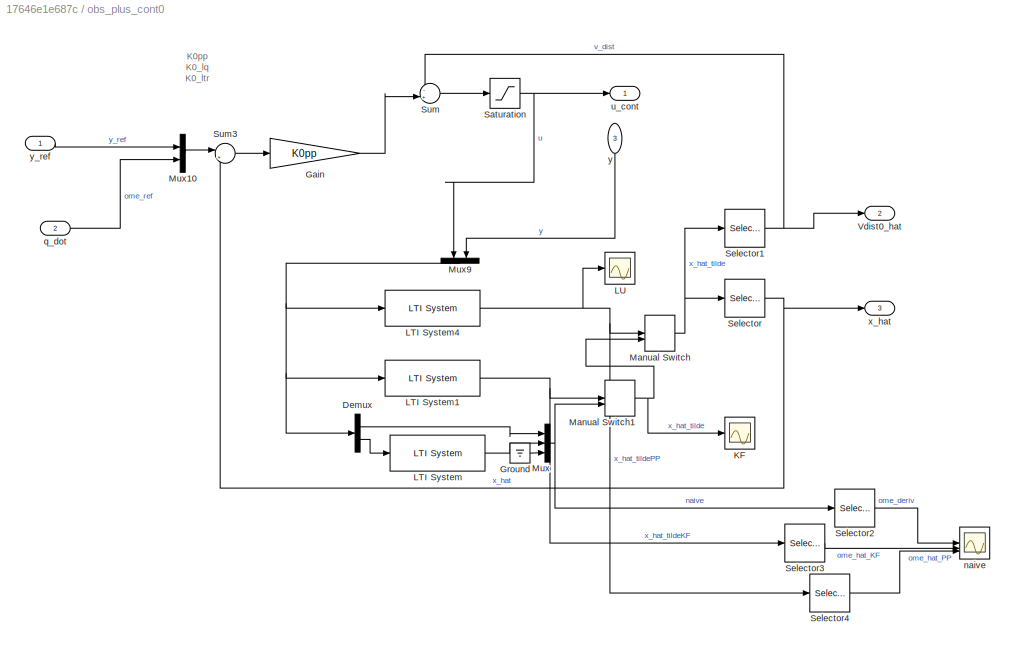
BLOCK [SubSystem] obs_plus_cont0
  PortSchema = {"entries":[{"content":{"sides":[{"content":{"connectorIds":["In1","In2"]},"type":"ConnectorPlacement.EquallySpacedRectSide","uuid":"7e337073-f6d2-417a-8e59-28c73e83b3ad"},{"content":{"connectorIds":["Out1","Out2","Out3"],"side":"RIGHT"},"type":"ConnectorPlacement.EquallySpacedRectSide","uuid":"5627fbf0-dcb6-49bc-b98e-bf2ddfde274c"},{"content":{"connectorIds":["In3"],"side":"TOP"},"type":"Connecto...<+391ch>
BLOCK [Demux] obs_plus_cont0/Demux
  Outputs = 2
BLOCK [Gain] obs_plus_cont0/Gain
  Gain = K0pp
  Multiplication = Matrix(K*u)
BLOCK [Ground] obs_plus_cont0/Ground
BLOCK [Scope] obs_plus_cont0/KF
  Floating = off
  NumInputPorts = 1
  ScopeSpecificationString = Simulink.scopes.TimeScopeBlockCfg('CurrentConfiguration', extmgr.ConfigurationSet(extmgr.Configuration('Core','General UI',true),extmgr.Configuration('Core','Source UI',true),extmgr.Configuration('Sources','WiredSimulink',true,'DataLoggingVariableName','ScopeData3'),extmgr.Configuration('Visuals','Time Domain',true,'SerializedDisplays',{struct('MinYLimReal','-1.00000','MaxYLimReal','1.00000','YLab...<+1582ch>
BLOCK [Reference] obs_plus_cont0/LTI System  REF=cstblocks/LTI System
  SourceBlock = cstblocks/LTI System
  SourceType = LTI Block
BLOCK [Reference] obs_plus_cont0/LTI System1  REF=cstblocks/LTI System
  SourceBlock = cstblocks/LTI System
  SourceType = LTI Block
BLOCK [Reference] obs_plus_cont0/LTI System4  REF=cstblocks/LTI System
  SourceBlock = cstblocks/LTI System
  SourceType = LTI Block
BLOCK [Scope] obs_plus_cont0/LU
  Floating = off
  NumInputPorts = 1
  ScopeSpecificationString = Simulink.scopes.TimeScopeBlockCfg('CurrentConfiguration', extmgr.ConfigurationSet(extmgr.Configuration('Core','General UI',true),extmgr.Configuration('Core','Source UI',true),extmgr.Configuration('Sources','WiredSimulink',true,'DataLoggingVariableName','ScopeData1'),extmgr.Configuration('Visuals','Time Domain',true,'SerializedDisplays',{struct('MinYLimReal','-3.23035','MaxYLimReal','0.85842','YLab...<+1622ch>
BLOCK [ManualSwitch] obs_plus_cont0/Manual Switch
BLOCK [ManualSwitch] obs_plus_cont0/Manual Switch1
BLOCK [Mux] obs_plus_cont0/Mux
  DisplayOption = bar
  Inputs = 3
BLOCK [Mux] obs_plus_cont0/Mux10
  DisplayOption = bar
  Inputs = 2
BLOCK [Mux] obs_plus_cont0/Mux9
  DisplayOption = bar
  Inputs = 2
  NameLocation = left
BLOCK [Saturate] obs_plus_cont0/Saturation
  LowerLimit = -10
  UpperLimit = 10
BLOCK [Selector] obs_plus_cont0/Selector
  IndexOptions = Index vector (dialog)
  Indices = [1 2]
  InputPortWidth = 3
  OutputSizes = 1
BLOCK [Selector] obs_plus_cont0/Selector1
  IndexOptions = Index vector (dialog)
  Indices = 3
  InputPortWidth = 3
  OutputSizes = 1
BLOCK [Selector] obs_plus_cont0/Selector2
  IndexOptions = Index vector (dialog)
  Indices = 2
  InputPortWidth = 3
  OutputSizes = 1
BLOCK [Selector] obs_plus_cont0/Selector3
  IndexOptions = Index vector (dialog)
  Indices = 2
  InputPortWidth = 3
  OutputSizes = 1
BLOCK [Selector] obs_plus_cont0/Selector4
  IndexOptions = Index vector (dialog)
  Indices = 2
  InputPortWidth = 3
  OutputSizes = 1
BLOCK [Sum] obs_plus_cont0/Sum
  Inputs = -+|
BLOCK [Sum] obs_plus_cont0/Sum3
  Inputs = |+-
BLOCK [Outport] obs_plus_cont0/Vdist0_hat
  Port = 2
BLOCK [Scope] obs_plus_cont0/naive
  Floating = off
  NumInputPorts = 3
  ScopeSpecificationString = Simulink.scopes.TimeScopeBlockCfg('CurrentConfiguration', extmgr.ConfigurationSet(extmgr.Configuration('Core','General UI',true),extmgr.Configuration('Core','Source UI',true),extmgr.Configuration('Sources','WiredSimulink',true,'DataLoggingVariableName','ScopeData2'),extmgr.Configuration('Visuals','Time Domain',true,'SerializedDisplays',{struct('MinYLimReal','-0.06785','MaxYLimReal','0.64506','YLab...<+1903ch>
BLOCK [Inport] obs_plus_cont0/q_dot
  Port = 2
BLOCK [Outport] obs_plus_cont0/u_cont
BLOCK [Outport] obs_plus_cont0/x_hat
  Port = 3
BLOCK [Inport] obs_plus_cont0/y
  NameLocation = left
  Port = 3
BLOCK [Inport] obs_plus_cont0/y_ref
BLOCK [SubSystem] obs_plus_cont1
  PortSchema = {"entries":[{"content":{"sides":[{"content":{"connectorIds":["In1"]},"type":"ConnectorPlacement.EquallySpacedRectSide","uuid":"7e337073-f6d2-417a-8e59-28c73e83b3ad"},{"content":{"connectorIds":["Out1","Out2","Out3"],"side":"RIGHT"},"type":"ConnectorPlacement.EquallySpacedRectSide","uuid":"5627fbf0-dcb6-49bc-b98e-bf2ddfde274c"},{"content":{"side":"TOP"},"type":"ConnectorPlacement.EquallySpacedRectS...<+391ch>
BLOCK [Gain] obs_plus_cont1/Gain
  Gain = K1pp
  Multiplication = Matrix(K*u)
BLOCK [Reference] obs_plus_cont1/LTI System4  REF=cstblocks/LTI System
  SourceBlock = cstblocks/LTI System
  SourceType = LTI Block
BLOCK [Mux] obs_plus_cont1/Mux10
  DisplayOption = bar
  Inputs = 2
BLOCK [Mux] obs_plus_cont1/Mux9
  DisplayOption = bar
  Inputs = 2
  NameLocation = left
BLOCK [Saturate] obs_plus_cont1/Saturation
  LowerLimit = -10
  UpperLimit = 10
BLOCK [Selector] obs_plus_cont1/Selector
  IndexOptions = Index vector (dialog)
  Indices = [1 2]
  InputPortWidth = 3
  OutputSizes = 1
BLOCK [Selector] obs_plus_cont1/Selector1
  IndexOptions = Index vector (dialog)
  Indices = 3
  InputPortWidth = 3
  OutputSizes = 1
BLOCK [Sum] obs_plus_cont1/Sum
  Inputs = -+|
BLOCK [Sum] obs_plus_cont1/Sum3
  Inputs = |+-
BLOCK [Outport] obs_plus_cont1/V_dist1_hat
  Port = 2
BLOCK [Inport] obs_plus_cont1/q_dot
  Port = 3
BLOCK [Outport] obs_plus_cont1/u_cont
BLOCK [Outport] obs_plus_cont1/x_hat
  Port = 3
BLOCK [Inport] obs_plus_cont1/y
  NameLocation = left
  Port = 2
BLOCK [Inport] obs_plus_cont1/y_ref
BLOCK [Lookup_n-D] square_x
  BreakpointsForDimension1 = 0:4
  InputPortMap = u0
  InternalRulePriority = Speed
  NumberOfTableDimensions = 1
  RndMeth = Simplest
  Table = [-1, 1 , 1 , -1 ,-1]
BLOCK [Lookup_n-D] square_y
  BreakpointsForDimension1 = 0:4
  InputPortMap = u0
  InternalRulePriority = Speed
  NumberOfTableDimensions = 1
  RndMeth = Simplest
  Table = [-1, -1 , 1 , 1 ,-1]
BLOCK [Lookup_n-D] xTable
  BreakpointsForDimension1 = 0:2:6
  BreakpointsForDimension2 = [1:3]
  Commented = on
  InputPortMap = u0
  InternalRulePriority = Speed
  NumberOfTableDimensions = 1
  RndMeth = Simplest
  Table = [0.127 0.051 0.051 0.08]
ANNOTATION obs_plus_cont0: K0pp K0_lq K0_ltr
NET Clock1:1 -> 2-D y Table1:1, xTable:1
LINE Clock:1 -> Gain3:1
LINE Constant2:1 -> Manual Switch5:2
LINE Constant3:1 -> Subsystem Reference:1
LINE Constant:1 -> Mod:2
LINE Demux1:1 -> Mux5:3
LINE Demux1:2 -> Mux6:3
LINE Demux1:3 -> Mux7:4
LINE Demux2:1 -> MATLAB Function:3
LINE Demux2:2 -> MATLAB Function:4
LINE Demux3:1 -> inverse_kin 1:1
LINE Demux3:2 -> inverse_kin 1:2
LINE Demux4:1 -> Mux5:4
LINE Demux4:2 -> Mux6:4
LINE Demux4:3 -> Mux7:5
LINE Demux:1 -> Mux5:2
LINE Demux:2 -> Mux6:2
LINE Gain3:1 -> Gain:1
LINE Gain:1 -> Mod:1
LINE Ground1:1 -> Manual Switch:1
LINE LTI System1:1 -> Demux1:1
LINE LTI System4:1 -> Demux4:1
LINE LTI System:1 -> Demux:1
NET MATLAB Function:1 -> Scope4:1, obs_plus_cont0:2
NET MATLAB Function:2 -> Scope4:2, obs_plus_cont1:3
NET Manual Switch1:1 -> Mux7:3, Plant:5, Plant:6
LINE Manual Switch2:1 -> Manual Switch4:1
NET Manual Switch4:1 -> Mux1:1, obs_plus_cont1:1
LINE Manual Switch5:1 -> Demux2:1
NET Manual Switch:1 -> Mux:1, obs_plus_cont0:1
NET Mod:1 -> square_x:1, square_y:1
LINE Mux10:1 -> Manual Switch3:1
LINE Mux11:1 -> Manual Switch5:1
LINE Mux1:1 -> Radians to Degrees1:1
LINE Mux2:1 -> Radians to Degrees2:1
LINE Mux3:1 -> Scope:4
NET Mux4:1 -> LTI System1:1, LTI System4:1, LTI System:1
LINE Mux5:1 -> Scope1:1
LINE Mux6:1 -> Scope1:2
LINE Mux7:1 -> Scope2:1
LINE Mux8:1 -> Manual Switch3:2
LINE Mux9:1 -> Gain2:1
LINE Mux:1 -> Radians to Degrees:1
LINE Plant/Gain4:1 -> Plant/Simulink-PS Converter1:1
LINE Plant/Gain5:1 -> Plant/k//R:1
LINE Plant/Gain6:1 -> Plant/Simulink-PS Converter2:1
LINE Plant/Gain7:1 -> Plant/k//R1:1
LINE Plant/Ground1:1 -> Plant/Sum1:3
LINE Plant/Ground:1 -> Plant/Sum:3
LINE Plant/K^2//R1:1 -> Plant/Sum1:1
LINE Plant/K^2//R:1 -> Plant/Sum:1
LINE Plant/Max:1 -> Plant/Scope:1
LINE Plant/PS-Simulink Converter1:1 -> Plant/Zero-Order Hold3:1
LINE Plant/PS-Simulink Converter2:1 -> Plant/omega1:1
LINE Plant/PS-Simulink Converter3:1 -> Plant/omega2:1
LINE Plant/PS-Simulink Converter4:1 -> Plant/Max:2
LINE Plant/PS-Simulink Converter5:1 -> Plant/K^2//R:1
LINE Plant/PS-Simulink Converter6:1 -> Plant/K^2//R1:1
LINE Plant/PS-Simulink Converter7:1 -> Plant/Zero-Order Hold:1
LINE Plant/PS-Simulink Converter8:1 -> Plant/Zero-Order Hold1:1
LINE Plant/PS-Simulink Converter9:1 -> Plant/Max:1
LINE Plant/PS-Simulink Converter:1 -> Plant/Zero-Order Hold2:1
LINE Plant/Quantizer1:1 -> Plant/theta2:1
LINE Plant/Quantizer:1 -> Plant/theta1L:1
LINE Plant/Sum1:1 -> Plant/Gain6:1
LINE Plant/Sum2:1 -> Plant/Gain7:1
LINE Plant/Sum3:1 -> Plant/Gain5:1
LINE Plant/Sum:1 -> Plant/Gain4:1
LINE Plant/Zero-Order Hold1:1 -> Plant/Quantizer1:1
NET Plant/Zero-Order Hold2:1 -> Plant/Scope2:2, Plant/pin23 plot:2
NET Plant/Zero-Order Hold3:1 -> Plant/Scope2:1, Plant/pin23 plot:1
LINE Plant/Zero-Order Hold:1 -> Plant/Quantizer:1
LINE Plant/d0:1 -> Plant/Sum3:2
LINE Plant/dist Ex:1 -> Plant/Simulink-PS Converter3:1
LINE Plant/dist Ey:1 -> Plant/Simulink-PS Converter4:1
LINE Plant/k//R1:1 -> Plant/Sum1:2
LINE Plant/k//R:1 -> Plant/Sum:2
LINE Plant/tau_d1:1 -> Plant/Sum2:2
LINE Plant/v1:1 -> Plant/Sum3:1
LINE Plant/v2:1 -> Plant/Sum2:1
NET Plant:1 -> MATLAB Function:1, Mux4:2, Mux5:1, Mux:2, obs_plus_cont0:3
NET Plant:2 -> Mux2:1, Mux6:1
NET Plant:3 -> MATLAB Function:2, Mux1:2, obs_plus_cont1:2
LINE Plant:4 -> Mux2:2
LINE Product1:1 -> Manual Switch1:1
NET Product:1 -> Plant:3, Plant:4
LINE Radians to Degrees1:1 -> Scope:2
LINE Radians to Degrees2:1 -> Scope:3
LINE Radians to Degrees:1 -> Scope:1
LINE Signal Editor1:1 -> Mux10:1
LINE Signal Editor1:2 -> Mux11:1
LINE Signal Editor1:3 -> Mux10:2
LINE Signal Editor1:4 -> Mux11:2
LINE Signal Editor:1 -> Mux8:1
LINE Signal Generator1:1 -> Product1:2
LINE Signal Generator2:1 -> Product:2
LINE Signal Generator:1 -> Manual Switch2:1
LINE Step1:1 -> Manual Switch1:2
LINE Step2:1 -> Sum2:1
LINE Step3:1 -> Manual Switch2:2
LINE Step4:1 -> Sum2:2
LINE Step:1 -> Product:1
LINE Subsystem Reference:2 -> Scope3:1
LINE Sum2:1 -> Product1:1
LINE centering:1 -> Demux3:1
LINE circle 3cm/Mux1:1 -> circle 3cm/yx_dot:1
LINE circle 3cm/Mux9:1 -> circle 3cm/xy:1
LINE circle 3cm/x:1 -> circle 3cm/Mux9:2
LINE circle 3cm/x_dot:1 -> circle 3cm/Mux1:2
LINE circle 3cm/y:1 -> circle 3cm/Mux9:1
LINE circle 3cm/y_dot:1 -> circle 3cm/Mux1:1
LINE circle 3cm:1 -> centering:1
LINE inverse_kin 1/Acos1:1 -> inverse_kin 1/Sum4:2
LINE inverse_kin 1/Acos:1 -> inverse_kin 1/Sum3:2
LINE inverse_kin 1/Atan1:1 -> inverse_kin 1/Sum4:1
LINE inverse_kin 1/Atan2:1 -> inverse_kin 1/Sum3:1
LINE inverse_kin 1/Bias:1 -> inverse_kin 1/theta_a2:1
LINE inverse_kin 1/Constant1:1 -> inverse_kin 1/Sum:2
LINE inverse_kin 1/Gain1:1 -> inverse_kin 1/Acos:1
LINE inverse_kin 1/Gain:1 -> inverse_kin 1/Acos1:1
LINE inverse_kin 1/Sqrt1:1 -> inverse_kin 1/Gain:1
LINE inverse_kin 1/Sqrt:1 -> inverse_kin 1/Gain1:1
NET inverse_kin 1/Square1:1 -> inverse_kin 1/Sum1:2, inverse_kin 1/Sum2:1
LINE inverse_kin 1/Square2:1 -> inverse_kin 1/Sum2:2
LINE inverse_kin 1/Square:1 -> inverse_kin 1/Sum1:1
LINE inverse_kin 1/Sum1:1 -> inverse_kin 1/Sqrt:1
LINE inverse_kin 1/Sum2:1 -> inverse_kin 1/Sqrt1:1
LINE inverse_kin 1/Sum3:1 -> inverse_kin 1/theta_a1:1
LINE inverse_kin 1/Sum4:1 -> inverse_kin 1/Bias:1
NET inverse_kin 1/Sum:1 -> inverse_kin 1/Atan1:2, inverse_kin 1/Square2:1
NET inverse_kin 1/x:1 -> inverse_kin 1/Atan2:2, inverse_kin 1/Square:1, inverse_kin 1/Sum:1
NET inverse_kin 1/y:1 -> inverse_kin 1/Atan1:1, inverse_kin 1/Atan2:1, inverse_kin 1/Square1:1
NET inverse_kin 1:1 -> Manual Switch:2, Scope5:1
NET inverse_kin 1:2 -> Manual Switch4:2, Scope5:2
LINE lissajous 4cm/Mux9:1 -> lissajous 4cm/xy:1
LINE lissajous 4cm/Sine Wave1:1 -> lissajous 4cm/Mux9:2
LINE lissajous 4cm/Sine Wave:1 -> lissajous 4cm/Mux9:1
LINE obs_plus_cont0/Demux:1 -> obs_plus_cont0/Mux:1
LINE obs_plus_cont0/Demux:2 -> obs_plus_cont0/LTI System:1
LINE obs_plus_cont0/Gain:1 -> obs_plus_cont0/Sum:2
LINE obs_plus_cont0/Ground:1 -> obs_plus_cont0/Mux:3
NET obs_plus_cont0/LTI System1:1 -> obs_plus_cont0/Manual Switch1:1, obs_plus_cont0/Selector3:1
NET obs_plus_cont0/LTI System4:1 -> obs_plus_cont0/LU:1, obs_plus_cont0/Manual Switch:1, obs_plus_cont0/Selector4:1
LINE obs_plus_cont0/LTI System:1 -> obs_plus_cont0/Mux:2
NET obs_plus_cont0/Manual Switch1:1 -> obs_plus_cont0/KF:1, obs_plus_cont0/Manual Switch:2
NET obs_plus_cont0/Manual Switch:1 -> obs_plus_cont0/Selector1:1, obs_plus_cont0/Selector:1
LINE obs_plus_cont0/Mux10:1 -> obs_plus_cont0/Sum3:1
NET obs_plus_cont0/Mux9:1 -> obs_plus_cont0/Demux:1, obs_plus_cont0/LTI System1:1, obs_plus_cont0/LTI System4:1
NET obs_plus_cont0/Mux:1 -> obs_plus_cont0/Manual Switch1:2, obs_plus_cont0/Selector2:1
NET obs_plus_cont0/Saturation:1 -> obs_plus_cont0/Mux9:1, obs_plus_cont0/u_cont:1
NET obs_plus_cont0/Selector1:1 -> obs_plus_cont0/Sum:1, obs_plus_cont0/Vdist0_hat:1
LINE obs_plus_cont0/Selector2:1 -> obs_plus_cont0/naive:1
LINE obs_plus_cont0/Selector3:1 -> obs_plus_cont0/naive:2
LINE obs_plus_cont0/Selector4:1 -> obs_plus_cont0/naive:3
NET obs_plus_cont0/Selector:1 -> obs_plus_cont0/Sum3:2, obs_plus_cont0/x_hat:1
LINE obs_plus_cont0/Sum3:1 -> obs_plus_cont0/Gain:1
LINE obs_plus_cont0/Sum:1 -> obs_plus_cont0/Saturation:1
LINE obs_plus_cont0/q_dot:1 -> obs_plus_cont0/Mux10:2
LINE obs_plus_cont0/y:1 -> obs_plus_cont0/Mux9:2
LINE obs_plus_cont0/y_ref:1 -> obs_plus_cont0/Mux10:1
NET obs_plus_cont0:1 -> Mux3:1, Mux4:1, Plant:1
LINE obs_plus_cont0:2 -> Mux7:1
LINE obs_plus_cont1/Gain:1 -> obs_plus_cont1/Sum:2
NET obs_plus_cont1/LTI System4:1 -> obs_plus_cont1/Selector1:1, obs_plus_cont1/Selector:1
LINE obs_plus_cont1/Mux10:1 -> obs_plus_cont1/Sum3:1
LINE obs_plus_cont1/Mux9:1 -> obs_plus_cont1/LTI System4:1
NET obs_plus_cont1/Saturation:1 -> obs_plus_cont1/Mux9:1, obs_plus_cont1/u_cont:1
NET obs_plus_cont1/Selector1:1 -> obs_plus_cont1/Sum:1, obs_plus_cont1/V_dist1_hat:1
NET obs_plus_cont1/Selector:1 -> obs_plus_cont1/Sum3:2, obs_plus_cont1/x_hat:1
LINE obs_plus_cont1/Sum3:1 -> obs_plus_cont1/Gain:1
LINE obs_plus_cont1/Sum:1 -> obs_plus_cont1/Saturation:1
LINE obs_plus_cont1/q_dot:1 -> obs_plus_cont1/Mux10:2
LINE obs_plus_cont1/y:1 -> obs_plus_cont1/Mux9:2
LINE obs_plus_cont1/y_ref:1 -> obs_plus_cont1/Mux10:1
NET obs_plus_cont1:1 -> Mux3:2, Plant:2
LINE obs_plus_cont1:2 -> Mux7:2
LINE square_x:1 -> Mux9:2
LINE square_y:1 -> Mux9:1
PNET net1: Plant/Common Gear Constraint1:LConn1 -- Plant/Graphic3:RConn1 -- Plant/Rotor4:LConn1
PNET net2: Plant/Common Gear Constraint1:RConn1 -- Plant/External Force and Torque2:RConn1 -- Plant/Link 4:RConn1 -- Plant/gearbox 2:LConn1 -- Plant/q2:RConn1
PNET net3: Plant/Common Gear Constraint:LConn1 -- Plant/Graphic:RConn1 -- Plant/Rotor3:LConn1
PNET net4: Plant/Common Gear Constraint:RConn1 -- Plant/External Force and Torque1:RConn1 -- Plant/Link 1:LConn1 -- Plant/gearbox 1:LConn1 -- Plant/q1:RConn1
PNET net5: Plant/Cylindrical Solid:LConn1 -- Plant/Graphic7:RConn1 -- Plant/Spherical Joint:LConn1
PNET net6: Plant/Cylindrical Solid:RConn1 -- Plant/Spatial Contact Force1:RConn1 -- Plant/Spatial Contact Force:RConn1
PLINE Plant/External Force and Torque1:LConn1 -- Plant/Simulink-PS Converter5:RConn1
PLINE Plant/External Force and Torque2:LConn1 -- Plant/Simulink-PS Converter6:RConn1
PLINE Plant/External Force and Torque:LConn1 -- Plant/Simulink-PS Converter3:RConn1
PLINE Plant/External Force and Torque:LConn2 -- Plant/Simulink-PS Converter4:RConn1
PNET net7: Plant/External Force and Torque:RConn1 -- Plant/For the plot:RConn1 -- Plant/Graphic6:RConn1 -- Plant/Link 2:RConn1 -- Plant/free23:LConn1
PNET net8: Plant/For the plot:LConn1 -- Plant/center_taskspace:RConn1 -- Plant/obstacle shift:LConn1
PLINE Plant/For the plot:RConn2 -- Plant/PS-Simulink Converter1:LConn1
PLINE Plant/For the plot:RConn3 -- Plant/PS-Simulink Converter:LConn1
PLINE Plant/Graphic1:RConn1 -- Plant/gearbox 1:RConn1
PLINE Plant/Graphic2:RConn1 -- Plant/gearbox 2:RConn1
PNET net9: Plant/Graphic4:RConn1 -- Plant/Link 2:LConn1 -- Plant/free12:RConn1
PNET net10: Plant/Graphic5:RConn1 -- Plant/Link 3:RConn1 -- Plant/free34:LConn1
PLINE Plant/Link 1/B_b:RConn1 -- Plant/Link 1/B_top:LConn1
PNET net11: Plant/Link 1/B_bottom:RConn1 -- Plant/Link 1/B_top:RConn1 -- Plant/Link 1/F_bottom :LConn1 -- Plant/Link 1/F_top:LConn1 -- Plant/Link 1/link :RConn1
PLINE Plant/Link 1/F_b:RConn1 -- Plant/Link 1/F_bottom :RConn1
PLINE Plant/Link 1:RConn1 -- Plant/free12:LConn1
PLINE Plant/Link 2/B_bottom:LConn1 -- Plant/Link 2/B_t:RConn1
PNET net12: Plant/Link 2/B_bottom:RConn1 -- Plant/Link 2/B_top:RConn1 -- Plant/Link 2/F_bottom :LConn1 -- Plant/Link 2/F_top:LConn1 -- Plant/Link 2/link :RConn1
PLINE Plant/Link 2/Contact:RConn1 -- Plant/Link 2/link :LConn1
PLINE Plant/Link 2/F_b:RConn1 -- Plant/Link 2/F_bottom :RConn1
PLINE Plant/Link 2:LConn2 -- Plant/Spatial Contact Force:LConn1
PLINE Plant/Link 3/B_bottom:LConn1 -- Plant/Link 3/B_t:RConn1
PNET net13: Plant/Link 3/B_bottom:RConn1 -- Plant/Link 3/B_top:RConn1 -- Plant/Link 3/F_bottom :LConn1 -- Plant/Link 3/F_top:LConn1 -- Plant/Link 3/link :RConn1
PLINE Plant/Link 3/Contact:RConn1 -- Plant/Link 3/link :LConn1
PLINE Plant/Link 3/F_t:RConn1 -- Plant/Link 3/F_top:RConn1
PLINE Plant/Link 3:LConn1 -- Plant/free23:RConn1
PLINE Plant/Link 3:LConn2 -- Plant/Spatial Contact Force1:LConn1
PLINE Plant/Link 4/B_b:RConn1 -- Plant/Link 4/B_top:LConn1
PNET net14: Plant/Link 4/B_bottom:RConn1 -- Plant/Link 4/B_top:RConn1 -- Plant/Link 4/F_bottom :LConn1 -- Plant/Link 4/F_top:LConn1 -- Plant/Link 4/link :RConn1
PLINE Plant/Link 4/F_b:RConn1 -- Plant/Link 4/F_bottom :RConn1
PLINE Plant/Link 4:LConn1 -- Plant/free34:RConn1
PNET net15: Plant/Mechanism Configuration:RConn1 -- Plant/Rigid Transform:LConn1 -- Plant/Solver Configuration:RConn1 -- Plant/World Frame:RConn1 -- Plant/center_taskspace:LConn1 -- Plant/deathstare:LConn1 -- Plant/ga1:RConn1 -- Plant/table:LConn1
PLINE Plant/PS-Simulink Converter2:LConn1 -- Plant/q1:RConn3
PLINE Plant/PS-Simulink Converter3:LConn1 -- Plant/q2:RConn3
PLINE Plant/PS-Simulink Converter4:LConn1 -- Plant/Spatial Contact Force:RConn2
PLINE Plant/PS-Simulink Converter5:LConn1 -- Plant/qm1:RConn3
PLINE Plant/PS-Simulink Converter6:LConn1 -- Plant/qm2:RConn3
PLINE Plant/PS-Simulink Converter7:LConn1 -- Plant/q1:RConn2
PLINE Plant/PS-Simulink Converter8:LConn1 -- Plant/q2:RConn2
PLINE Plant/PS-Simulink Converter9:LConn1 -- Plant/Spatial Contact Force1:RConn2
PNET net16: Plant/Rigid Transform1:LConn1 -- Plant/motor base 2:RConn1 -- Plant/table:RConn1
PLINE Plant/Rigid Transform1:RConn1 -- Plant/ga2:RConn1
PLINE Plant/Rigid Transform:RConn1 -- Plant/motor base 1:RConn1
PLINE Plant/Rotor3:RConn1 -- Plant/qm1:RConn1
PLINE Plant/Rotor4:RConn1 -- Plant/qm2:RConn1
PLINE Plant/Simulink-PS Converter1:RConn1 -- Plant/qm1:LConn2
PLINE Plant/Simulink-PS Converter2:RConn1 -- Plant/qm2:LConn2
PLINE Plant/Spherical Joint:RConn1 -- Plant/obstacle shift:RConn1
PLINE Plant/ga1:LConn1 -- Plant/q1:LConn1
PLINE Plant/ga2:LConn1 -- Plant/qm2:LConn1
PLINE Plant/motor base 1:LConn1 -- Plant/qm1:LConn1
PLINE Plant/motor base 2:LConn1 -- Plant/q2:LConn1
note: NET lines group one-source signal fan-out (src -> all destinations, sorted); 1:1 wires keep LINE; PNET lines group multi-terminal physical nets as a canonical sorted terminal list (undirected conserving connections); 2-terminal nets keep the pairwise PLINE form
CHART MATLAB Function states=1 transitions=1
  STATE_LABEL 'eML_blk_kernel()'
  STATE_LABEL 'SCRIPT:\nfunction [q1_dot,q2_dot]  = ang_speed_ff(t_a1,t_a2,vx,vy)\n%JACOBIAN_VF_PROJECTION Projection of v onto angle velocity\n%   Detailed explanation goes here\nalpha_dots = jacobian_vf_projection(t_a1,t_a2+pi/2,vx,vy);\nq1_dot = alpha_dots(1);\nq2_dot = alpha_dots(2);\nend\n'
CHART  states=0 transitions=0
